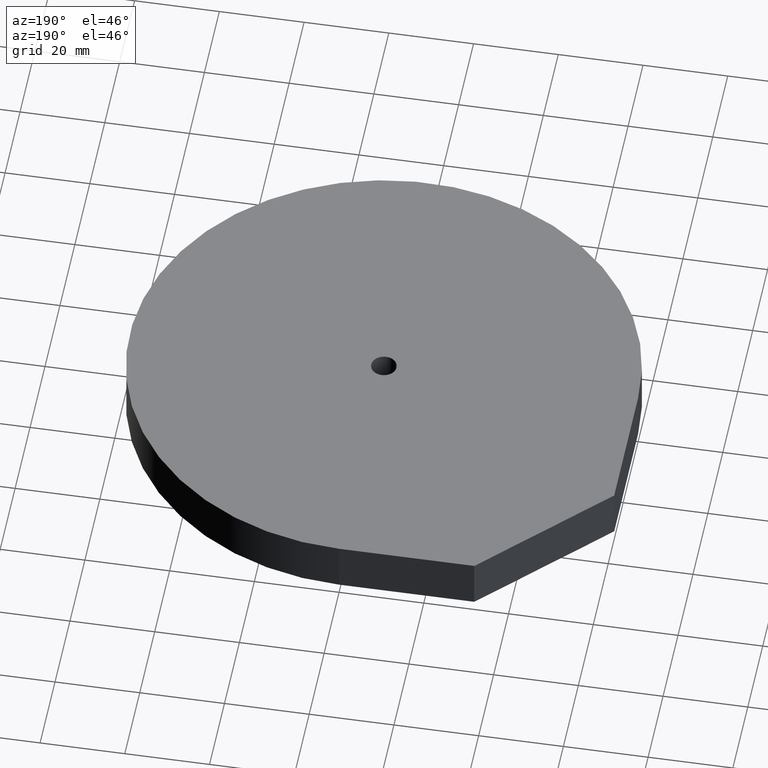
[diagram: clean part render]
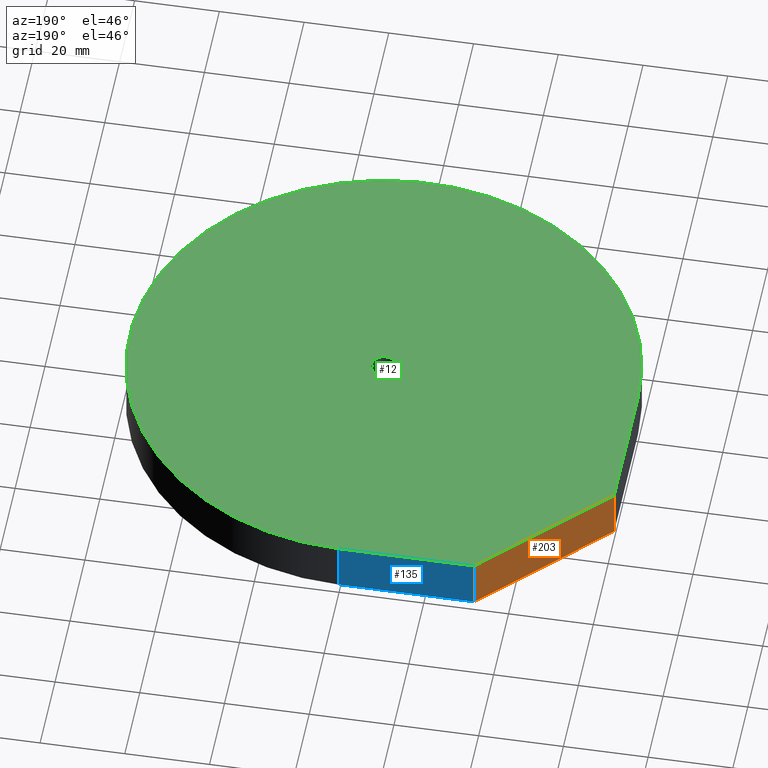
[diagram: same view with three faces highlighted in distinct colors, each labeled with its STEP entity id]
A machine part, auxiliary view with three faces highlighted in distinct colors.
Their STEP definitions:

[orange] entity #203 — the highlighted planar face has unit normal (-0.7071, 0.7071, 0).
#3 = EDGE_CURVE ( 'NONE', #238, #111, #130, .T. ) ;
#13 = EDGE_CURVE ( 'NONE', #186, #125, #184, .T. ) ;
#27 = DIRECTION ( 'NONE',  ( 0.0000000000000000000, 0.0000000000000000000, -1.000000000000000000 ) ) ;
#29 = EDGE_CURVE ( 'NONE', #238, #186, #244, .T. ) ;
#31 = EDGE_CURVE ( 'NONE', #111, #125, #92, .T. ) ;
#36 = DIRECTION ( 'NONE',  ( 0.7071067811865507900, 0.7071067811865442400, -0.0000000000000000000 ) ) ;
#39 = CARTESIAN_POINT ( 'NONE',  ( -31.92388155425075200, 60.00000000000029800, -6.000000000000000000 ) ) ;
#45 = CARTESIAN_POINT ( 'NONE',  ( -31.92388155425075200, 60.00000000000029800, 6.000000000000005300 ) ) ;
#46 = VECTOR ( 'NONE', #55, 1000.000000000000000 ) ;
#52 = CARTESIAN_POINT ( 'NONE',  ( -31.92388155425075200, 60.00000000000029800, 6.000000000000005300 ) ) ;
#55 = DIRECTION ( 'NONE',  ( 0.0000000000000000000, 0.0000000000000000000, -1.000000000000000000 ) ) ;
#77 = CARTESIAN_POINT ( 'NONE',  ( -31.92388155425075200, 60.00000000000029800, -6.000000000000000000 ) ) ;
#80 = VECTOR ( 'NONE', #188, 1000.000000000000100 ) ;
#92 = LINE ( 'NONE', #233, #172 ) ;
#111 = VERTEX_POINT ( 'NONE', #45 ) ;
#124 = ORIENTED_EDGE ( 'NONE', *, *, #31, .T. ) ;
#125 = VERTEX_POINT ( 'NONE', #77 ) ;
#130 = LINE ( 'NONE', #52, #80 ) ;
#137 = CARTESIAN_POINT ( 'NONE',  ( -60.00000000000000000, 31.92388155425130600, 6.000000000000005300 ) ) ;
#172 = VECTOR ( 'NONE', #27, 1000.000000000000000 ) ;
#178 = AXIS2_PLACEMENT_3D ( 'NONE', #218, #197, #180 ) ;
#180 = DIRECTION ( 'NONE',  ( -0.7071067811865507900, -0.7071067811865442400, 0.0000000000000000000 ) ) ;
#184 = LINE ( 'NONE', #39, #219 ) ;
#186 = VERTEX_POINT ( 'NONE', #237 ) ;
#188 = DIRECTION ( 'NONE',  ( 0.7071067811865507900, 0.7071067811865442400, -0.0000000000000000000 ) ) ;
#191 = ORIENTED_EDGE ( 'NONE', *, *, #3, .T. ) ;
#197 = DIRECTION ( 'NONE',  ( -0.7071067811865442400, 0.7071067811865507900, 0.0000000000000000000 ) ) ;
#198 = EDGE_LOOP ( 'NONE', ( #213, #191, #124, #212 ) ) ;
#202 = PLANE ( 'NONE',  #178 ) ;
#203 = ADVANCED_FACE ( 'NONE', ( #261 ), #202, .T. ) ;
#210 = CARTESIAN_POINT ( 'NONE',  ( -60.00000000000000000, 31.92388155425130600, 90.85281374238590500 ) ) ;
#212 = ORIENTED_EDGE ( 'NONE', *, *, #13, .F. ) ;
#213 = ORIENTED_EDGE ( 'NONE', *, *, #29, .F. ) ;
#218 = CARTESIAN_POINT ( 'NONE',  ( -31.92388155425075200, 60.00000000000029800, 90.85281374238590500 ) ) ;
#219 = VECTOR ( 'NONE', #36, 1000.000000000000100 ) ;
#233 = CARTESIAN_POINT ( 'NONE',  ( -31.92388155425075200, 60.00000000000029800, 90.85281374238590500 ) ) ;
#237 = CARTESIAN_POINT ( 'NONE',  ( -60.00000000000000000, 31.92388155425130600, -6.000000000000000000 ) ) ;
#238 = VERTEX_POINT ( 'NONE', #137 ) ;
#244 = LINE ( 'NONE', #210, #46 ) ;
#261 = FACE_OUTER_BOUND ( 'NONE', #198, .T. ) ;

[blue] entity #135 — the highlighted planar face has unit normal (0, 1, 0).
#1 = EDGE_CURVE ( 'NONE', #111, #144, #155, .T. ) ;
#2 = CARTESIAN_POINT ( 'NONE',  ( 0.0000000000000000000, 60.00000000000000000, 90.85281374238590500 ) ) ;
#9 = PLANE ( 'NONE',  #193 ) ;
#16 = EDGE_CURVE ( 'NONE', #125, #143, #190, .T. ) ;
#23 = DIRECTION ( 'NONE',  ( 1.000000000000000000, -9.346370909219268600E-015, -0.0000000000000000000 ) ) ;
#25 = EDGE_CURVE ( 'NONE', #144, #143, #257, .T. ) ;
#27 = DIRECTION ( 'NONE',  ( 0.0000000000000000000, 0.0000000000000000000, -1.000000000000000000 ) ) ;
#31 = EDGE_CURVE ( 'NONE', #111, #125, #92, .T. ) ;
#42 = CARTESIAN_POINT ( 'NONE',  ( 0.0000000000000000000, 60.00000000000000000, -6.000000000000000000 ) ) ;
#45 = CARTESIAN_POINT ( 'NONE',  ( -31.92388155425075200, 60.00000000000029800, 6.000000000000005300 ) ) ;
#53 = DIRECTION ( 'NONE',  ( -1.000000000000000000, 9.346370909219268600E-015, 0.0000000000000000000 ) ) ;
#77 = CARTESIAN_POINT ( 'NONE',  ( -31.92388155425075200, 60.00000000000029800, -6.000000000000000000 ) ) ;
#83 = DIRECTION ( 'NONE',  ( 9.346370909219268600E-015, 1.000000000000000000, 0.0000000000000000000 ) ) ;
#92 = LINE ( 'NONE', #233, #172 ) ;
#99 = EDGE_LOOP ( 'NONE', ( #154, #127, #204, #120 ) ) ;
#111 = VERTEX_POINT ( 'NONE', #45 ) ;
#120 = ORIENTED_EDGE ( 'NONE', *, *, #16, .F. ) ;
#125 = VERTEX_POINT ( 'NONE', #77 ) ;
#126 = CARTESIAN_POINT ( 'NONE',  ( 0.0000000000000000000, 60.00000000000000000, 6.000000000000005300 ) ) ;
#127 = ORIENTED_EDGE ( 'NONE', *, *, #1, .T. ) ;
#131 = DIRECTION ( 'NONE',  ( 1.000000000000000000, -9.346370909219268600E-015, 0.0000000000000000000 ) ) ;
#135 = ADVANCED_FACE ( 'NONE', ( #262 ), #9, .T. ) ;
#143 = VERTEX_POINT ( 'NONE', #42 ) ;
#144 = VERTEX_POINT ( 'NONE', #249 ) ;
#151 = VECTOR ( 'NONE', #131, 1000.000000000000000 ) ;
#154 = ORIENTED_EDGE ( 'NONE', *, *, #31, .F. ) ;
#155 = LINE ( 'NONE', #126, #151 ) ;
#172 = VECTOR ( 'NONE', #27, 1000.000000000000000 ) ;
#190 = LINE ( 'NONE', #227, #194 ) ;
#193 = AXIS2_PLACEMENT_3D ( 'NONE', #2, #83, #53 ) ;
#194 = VECTOR ( 'NONE', #23, 1000.000000000000000 ) ;
#195 = VECTOR ( 'NONE', #273, 1000.000000000000000 ) ;
#204 = ORIENTED_EDGE ( 'NONE', *, *, #25, .T. ) ;
#227 = CARTESIAN_POINT ( 'NONE',  ( 0.0000000000000000000, 60.00000000000000000, -6.000000000000000000 ) ) ;
#233 = CARTESIAN_POINT ( 'NONE',  ( -31.92388155425075200, 60.00000000000029800, 90.85281374238590500 ) ) ;
#249 = CARTESIAN_POINT ( 'NONE',  ( 5.607822545531560500E-013, 60.00000000000000000, 6.000000000000000000 ) ) ;
#257 = LINE ( 'NONE', #275, #195 ) ;
#262 = FACE_OUTER_BOUND ( 'NONE', #99, .T. ) ;
#273 = DIRECTION ( 'NONE',  ( 0.0000000000000000000, 0.0000000000000000000, -1.000000000000000000 ) ) ;
#275 = CARTESIAN_POINT ( 'NONE',  ( 0.0000000000000000000, 60.00000000000000000, 90.85281374238590500 ) ) ;

[green] entity #12 — the highlighted planar face has unit normal (0, 0, 1).
#1 = EDGE_CURVE ( 'NONE', #111, #144, #155, .T. ) ;
#3 = EDGE_CURVE ( 'NONE', #238, #111, #130, .T. ) ;
#4 = EDGE_CURVE ( 'NONE', #173, #238, #158, .T. ) ;
#5 = EDGE_CURVE ( 'NONE', #220, #259, #152, .T. ) ;
#10 = CARTESIAN_POINT ( 'NONE',  ( 0.0000000000000000000, 0.0000000000000000000, 6.000000000000000000 ) ) ;
#12 = ADVANCED_FACE ( 'NONE', ( #278, #157 ), #57, .T. ) ;
#34 = ORIENTED_EDGE ( 'NONE', *, *, #3, .F. ) ;
#37 = CARTESIAN_POINT ( 'NONE',  ( 0.0000000000000000000, 0.0000000000000000000, 6.000000000000000000 ) ) ;
#43 = CIRCLE ( 'NONE', #226, 3.000000000000000400 ) ;
#45 = CARTESIAN_POINT ( 'NONE',  ( -31.92388155425075200, 60.00000000000029800, 6.000000000000005300 ) ) ;
#47 = DIRECTION ( 'NONE',  ( 0.0000000000000000000, 1.000000000000000000, 0.0000000000000000000 ) ) ;
#49 = DIRECTION ( 'NONE',  ( 1.000000000000000000, 0.0000000000000000000, -0.0000000000000000000 ) ) ;
#50 = DIRECTION ( 'NONE',  ( 0.0000000000000000000, 0.0000000000000000000, 1.000000000000000000 ) ) ;
#52 = CARTESIAN_POINT ( 'NONE',  ( -31.92388155425075200, 60.00000000000029800, 6.000000000000005300 ) ) ;
#56 = CARTESIAN_POINT ( 'NONE',  ( -60.00000000000000000, 31.92388155425130600, 6.000000000000005300 ) ) ;
#57 = PLANE ( 'NONE',  #256 ) ;
#73 = DIRECTION ( 'NONE',  ( 1.000000000000000000, 0.0000000000000000000, 0.0000000000000000000 ) ) ;
#78 = DIRECTION ( 'NONE',  ( 0.0000000000000000000, 0.0000000000000000000, 1.000000000000000000 ) ) ;
#80 = VECTOR ( 'NONE', #188, 1000.000000000000100 ) ;
#103 = ORIENTED_EDGE ( 'NONE', *, *, #208, .F. ) ;
#105 = EDGE_LOOP ( 'NONE', ( #103, #266 ) ) ;
#111 = VERTEX_POINT ( 'NONE', #45 ) ;
#114 = CIRCLE ( 'NONE', #175, 60.00000000000000000 ) ;
#118 = DIRECTION ( 'NONE',  ( 1.000000000000000000, 0.0000000000000000000, 0.0000000000000000000 ) ) ;
#119 = DIRECTION ( 'NONE',  ( 0.0000000000000000000, 0.0000000000000000000, 1.000000000000000000 ) ) ;
#121 = ORIENTED_EDGE ( 'NONE', *, *, #1, .F. ) ;
#126 = CARTESIAN_POINT ( 'NONE',  ( 0.0000000000000000000, 60.00000000000000000, 6.000000000000005300 ) ) ;
#128 = CARTESIAN_POINT ( 'NONE',  ( 0.0000000000000000000, 0.0000000000000000000, 6.000000000000000000 ) ) ;
#130 = LINE ( 'NONE', #52, #80 ) ;
#131 = DIRECTION ( 'NONE',  ( 1.000000000000000000, -9.346370909219268600E-015, 0.0000000000000000000 ) ) ;
#137 = CARTESIAN_POINT ( 'NONE',  ( -60.00000000000000000, 31.92388155425130600, 6.000000000000005300 ) ) ;
#140 = DIRECTION ( 'NONE',  ( 1.000000000000000000, 0.0000000000000000000, 0.0000000000000000000 ) ) ;
#144 = VERTEX_POINT ( 'NONE', #249 ) ;
#151 = VECTOR ( 'NONE', #131, 1000.000000000000000 ) ;
#152 = CIRCLE ( 'NONE', #270, 3.000000000000000400 ) ;
#155 = LINE ( 'NONE', #126, #151 ) ;
#157 = FACE_BOUND ( 'NONE', #105, .T. ) ;
#158 = LINE ( 'NONE', #56, #241 ) ;
#160 = DIRECTION ( 'NONE',  ( 0.0000000000000000000, 0.0000000000000000000, 1.000000000000000000 ) ) ;
#161 = CARTESIAN_POINT ( 'NONE',  ( 0.0000000000000000000, 0.0000000000000000000, 6.000000000000000000 ) ) ;
#162 = CARTESIAN_POINT ( 'NONE',  ( 3.000000000000000400, 3.673940397442060400E-016, 6.000000000000000000 ) ) ;
#166 = CARTESIAN_POINT ( 'NONE',  ( -3.000000000000000400, 0.0000000000000000000, 6.000000000000000000 ) ) ;
#173 = VERTEX_POINT ( 'NONE', #269 ) ;
#175 = AXIS2_PLACEMENT_3D ( 'NONE', #128, #119, #118 ) ;
#188 = DIRECTION ( 'NONE',  ( 0.7071067811865507900, 0.7071067811865442400, -0.0000000000000000000 ) ) ;
#196 = ORIENTED_EDGE ( 'NONE', *, *, #260, .T. ) ;
#208 = EDGE_CURVE ( 'NONE', #259, #220, #43, .T. ) ;
#214 = ORIENTED_EDGE ( 'NONE', *, *, #4, .F. ) ;
#220 = VERTEX_POINT ( 'NONE', #162 ) ;
#226 = AXIS2_PLACEMENT_3D ( 'NONE', #161, #160, #140 ) ;
#238 = VERTEX_POINT ( 'NONE', #137 ) ;
#241 = VECTOR ( 'NONE', #47, 1000.000000000000000 ) ;
#245 = EDGE_LOOP ( 'NONE', ( #196, #121, #34, #214 ) ) ;
#249 = CARTESIAN_POINT ( 'NONE',  ( 5.607822545531560500E-013, 60.00000000000000000, 6.000000000000000000 ) ) ;
#256 = AXIS2_PLACEMENT_3D ( 'NONE', #37, #50, #49 ) ;
#259 = VERTEX_POINT ( 'NONE', #166 ) ;
#260 = EDGE_CURVE ( 'NONE', #173, #144, #114, .T. ) ;
#266 = ORIENTED_EDGE ( 'NONE', *, *, #5, .F. ) ;
#269 = CARTESIAN_POINT ( 'NONE',  ( -60.00000000000000000, 0.0000000000000000000, 6.000000000000000000 ) ) ;
#270 = AXIS2_PLACEMENT_3D ( 'NONE', #10, #78, #73 ) ;
#278 = FACE_OUTER_BOUND ( 'NONE', #245, .T. ) ;